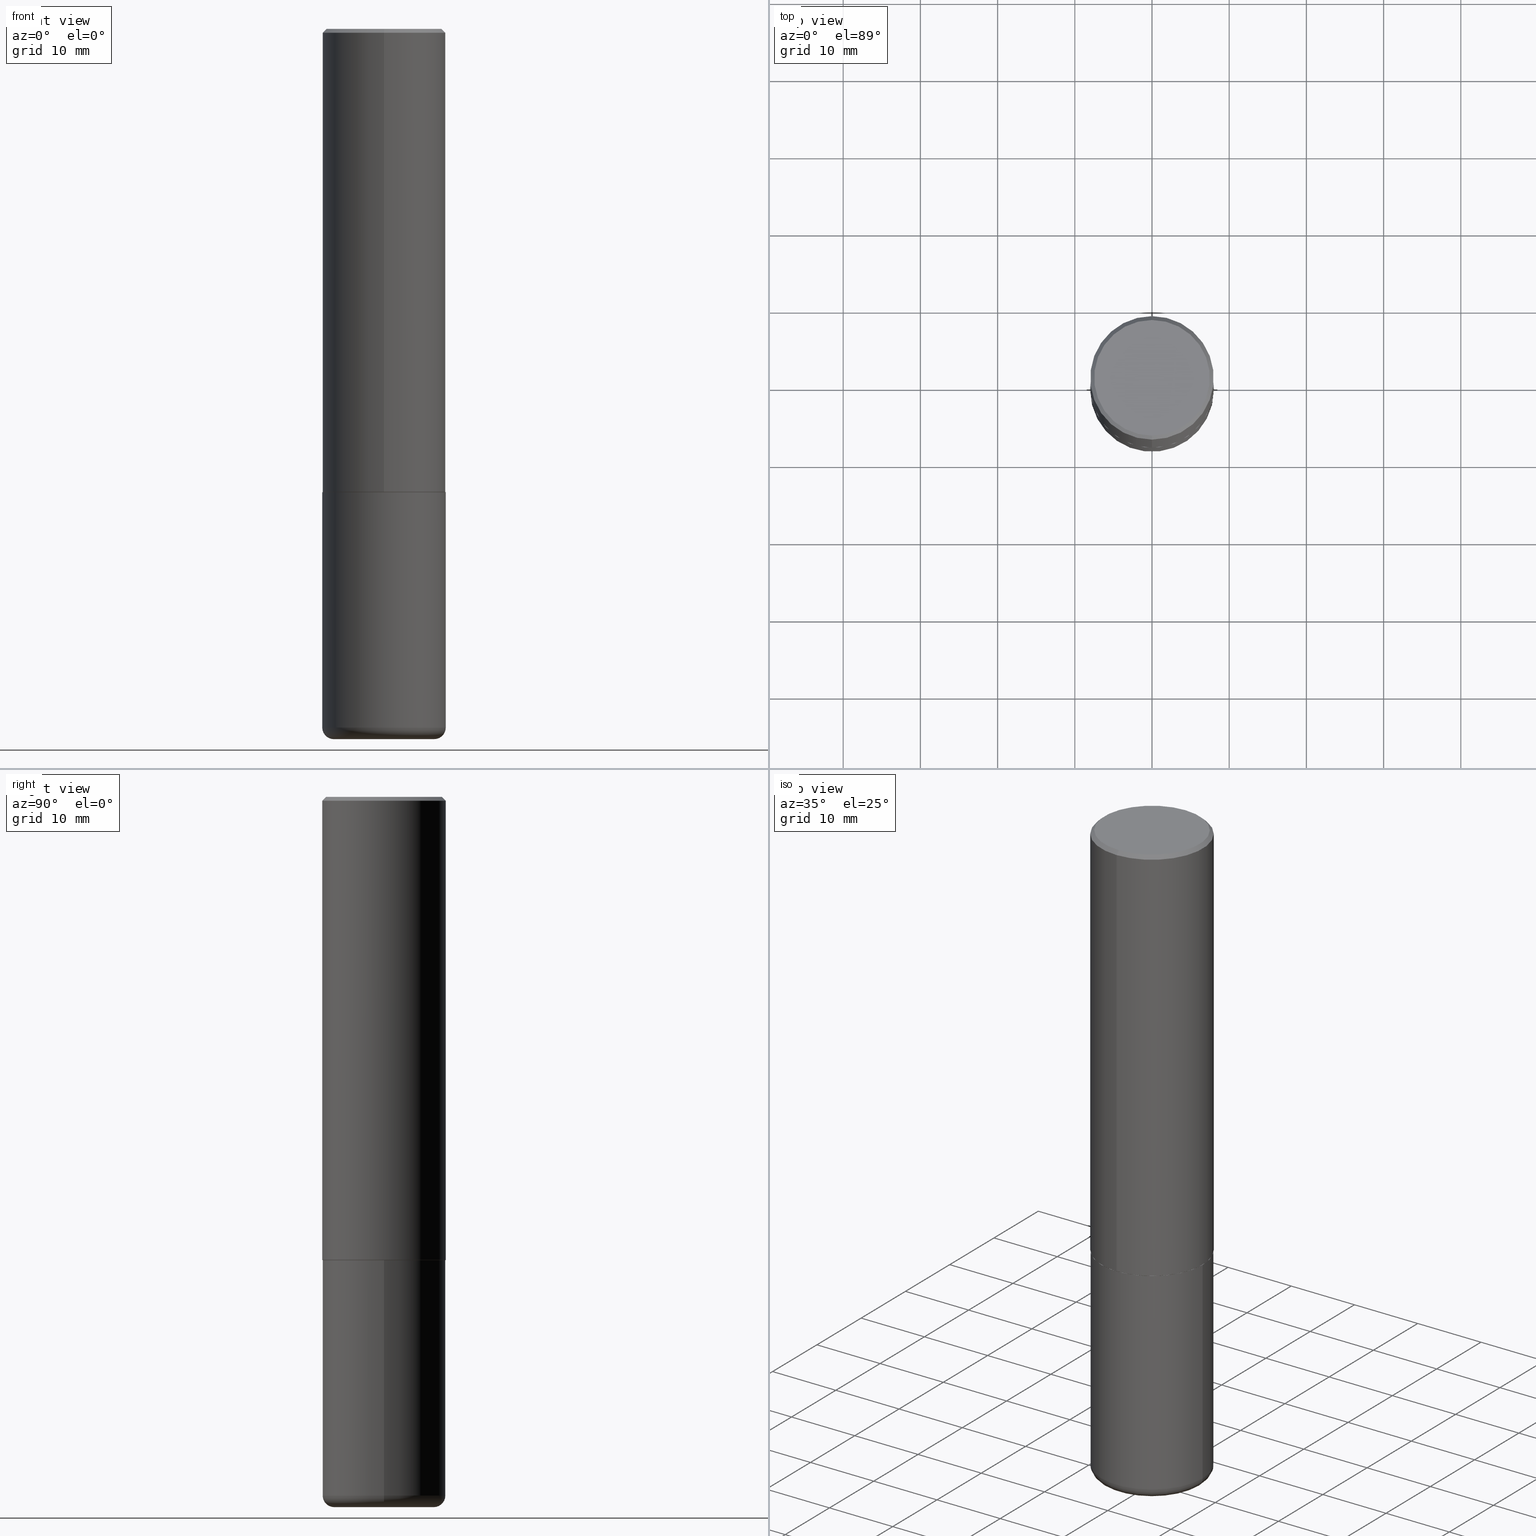
[diagram: canonical four-view strip — front | top / right | iso, engineering-drawing reading convention]
A machine part, canonical four-view strip (front | top / right | iso — engineering-drawing reading convention). The complete STEP part file that produces these views, byte-faithful:
ISO-10303-21;
HEADER;
FILE_DESCRIPTION (( 'STEP AP203' ),
    '1' );
FILE_NAME ('46476.STEP',
    '2024-03-04T23:18:42',
    ( '' ),
    ( '' ),
    'SwSTEP 2.0',
    'SolidWorks 2023',
    '' );
FILE_SCHEMA (( 'CONFIG_CONTROL_DESIGN' ));
ENDSEC;

DATA;
#1 = EDGE_LOOP ( 'NONE', ( #93, #29 ) ) ;
#2 = LOCAL_TIME ( 18, 18, 42.00000000000000000, #318 ) ;
#3 = VERTEX_POINT ( 'NONE', #195 ) ;
#4 = PERSON_AND_ORGANIZATION ( #107, #355 ) ;
#5 = APPLICATION_PROTOCOL_DEFINITION ( 'international standard', 'config_control_design', 1994, #44 ) ;
#6 = COORDINATED_UNIVERSAL_TIME_OFFSET ( 5, 0, .BEHIND. ) ;
#7 = TOROIDAL_SURFACE ( 'NONE', #342, 0.2558500000000000218, 0.05909999999999999282 ) ;
#8 = CARTESIAN_POINT ( 'NONE',  ( -0.3149500000000000077, 2.237854346276435590E-15, -1.549218606675782676E-29 ) ) ;
#9 = DATE_AND_TIME ( #356, #392 ) ;
#10 = DIRECTION ( 'NONE',  ( 2.445169622182783915E-29, -3.491909787363009980E-15, -1.000000000000000000 ) ) ;
#11 = FACE_OUTER_BOUND ( 'NONE', #384, .T. ) ;
#12 = ORIENTED_EDGE ( 'NONE', *, *, #179, .F. ) ;
#13 = DIRECTION ( 'NONE',  ( 2.445169622182784195E-29, -3.491909787363010375E-15, -1.000000000000000000 ) ) ;
#14 = CIRCLE ( 'NONE', #244, 0.3149500000000000077 ) ;
#15 = LINE ( 'NONE', #409, #204 ) ;
#16 = CYLINDRICAL_SURFACE ( 'NONE', #258, 0.3149500000000000077 ) ;
#17 = FACE_OUTER_BOUND ( 'NONE', #102, .T. ) ;
#18 = DIRECTION ( 'NONE',  ( 2.438088387897960049E-29, -3.491481338843145188E-15, -1.000000000000000000 ) ) ;
#19 = VERTEX_POINT ( 'NONE', #174 ) ;
#20 = CARTESIAN_POINT ( 'NONE',  ( 2.234301632597693067E-15, 0.3139499999999917357, -2.362200000000000966 ) ) ;
#21 = ORIENTED_EDGE ( 'NONE', *, *, #147, .F. ) ;
#22 = DIRECTION ( 'NONE',  ( 6.982962677686265922E-15, 1.000000000000000000, -3.491909787363009980E-15 ) ) ;
#23 = AXIS2_PLACEMENT_3D ( 'NONE', #405, #279, #241 ) ;
#24 = DIRECTION ( 'NONE',  ( -2.445468806185136597E-29, 3.491481338843145583E-15, 1.000000000000000000 ) ) ;
#25 = ORIENTED_EDGE ( 'NONE', *, *, #331, .T. ) ;
#26 = DIRECTION ( 'NONE',  ( -2.445468806185136877E-29, 3.491481338843145188E-15, 1.000000000000000000 ) ) ;
#27 = ORIENTED_EDGE ( 'NONE', *, *, #249, .F. ) ;
#28 = AXIS2_PLACEMENT_3D ( 'NONE', #328, #30, #133 ) ;
#29 = ORIENTED_EDGE ( 'NONE', *, *, #386, .F. ) ;
#30 = DIRECTION ( 'NONE',  ( -2.445169622182784195E-29, 3.491909787363010375E-15, 1.000000000000000000 ) ) ;
#31 = ORIENTED_EDGE ( 'NONE', *, *, #259, .T. ) ;
#32 = DIRECTION ( 'NONE',  ( 1.000000000000000000, -6.982962677686266711E-15, 0.000000000000000000 ) ) ;
#33 = EDGE_CURVE ( 'NONE', #45, #299, #69, .T. ) ;
#34 = CALENDAR_DATE ( 2024, 4, 3 ) ;
#35 = AXIS2_PLACEMENT_3D ( 'NONE', #87, #246, #363 ) ;
#36 = DIRECTION ( 'NONE',  ( 0.000000000000000000, 0.000000000000000000, 1.000000000000000000 ) ) ;
#37 = APPLICATION_CONTEXT ( 'configuration controlled 3d designs of mechanical parts and assemblies' ) ;
#38 = EDGE_CURVE ( 'NONE', #163, #3, #14, .T. ) ;
#39 = PERSON_AND_ORGANIZATION ( #107, #355 ) ;
#40 = CC_DESIGN_PERSON_AND_ORGANIZATION_ASSIGNMENT ( #100, #292, ( #50 ) ) ;
#41 = CIRCLE ( 'NONE', #104, 0.2949499999999997679 ) ;
#42 = CARTESIAN_POINT ( 'NONE',  ( 2.199284095337289871E-15, 0.3149499999999999522, -0.02000000000000116962 ) ) ;
#43 = LINE ( 'NONE', #8, #119 ) ;
#44 = APPLICATION_CONTEXT ( 'configuration controlled 3d designs of mechanical parts and assemblies' ) ;
#45 = VERTEX_POINT ( 'NONE', #332 ) ;
#46 = PLANE ( 'NONE',  #136 ) ;
#47 = DIRECTION ( 'NONE',  ( -2.445169622182784195E-29, 3.491909787363010375E-15, 1.000000000000000000 ) ) ;
#48 = VERTEX_POINT ( 'NONE', #359 ) ;
#49 = AXIS2_PLACEMENT_3D ( 'NONE', #364, #47, #338 ) ;
#50 = SECURITY_CLASSIFICATION ( '', '', #389 ) ;
#51 = EDGE_CURVE ( 'NONE', #256, #19, #293, .T. ) ;
#52 = DIRECTION ( 'NONE',  ( -2.445468806185136597E-29, 3.491481338843145583E-15, 1.000000000000000000 ) ) ;
#53 = CARTESIAN_POINT ( 'NONE',  ( -2.092108864420427242E-15, -0.2949499999999997679, 1.239222274688573328E-15 ) ) ;
#54 = CALENDAR_DATE ( 2024, 4, 3 ) ;
#55 = CC_DESIGN_SECURITY_CLASSIFICATION ( #50, ( #182 ) ) ;
#56 = CC_DESIGN_PERSON_AND_ORGANIZATION_ASSIGNMENT ( #387, #143, ( #413 ) ) ;
#57 = DIRECTION ( 'NONE',  ( 5.024295867787889629E-15, 0.7071067811865257013, 0.7071067811865691111 ) ) ;
#58 = ORIENTED_EDGE ( 'NONE', *, *, #280, .F. ) ;
#59 = DIRECTION ( 'NONE',  ( -2.445169622182784195E-29, 3.491909787363010375E-15, 1.000000000000000000 ) ) ;
#60 = VECTOR ( 'NONE', #26, 39.37007874015748143 ) ;
#61 = ORIENTED_EDGE ( 'NONE', *, *, #147, .T. ) ;
#62 = DIRECTION ( 'NONE',  ( -2.445468806185136597E-29, 3.491481338843145583E-15, 1.000000000000000000 ) ) ;
#63 = CARTESIAN_POINT ( 'NONE',  ( 4.890339244365585170E-31, -6.983819574726043281E-17, -0.02000000000000006981 ) ) ;
#64 = COORDINATED_UNIVERSAL_TIME_OFFSET ( 5, 0, .BEHIND. ) ;
#65 = CYLINDRICAL_SURFACE ( 'NONE', #197, 0.3149500000000001743 ) ;
#66 = ORIENTED_EDGE ( 'NONE', *, *, #259, .F. ) ;
#67 =( NAMED_UNIT ( * ) SI_UNIT ( $, .STERADIAN. ) SOLID_ANGLE_UNIT ( ) );
#68 = ADVANCED_FACE ( 'NONE', ( #233 ), #16, .T. ) ;
#69 = CIRCLE ( 'NONE', #301, 0.2558500000000000218 ) ;
#70 = CIRCLE ( 'NONE', #360, 0.3139500000000000068 ) ;
#71 = EDGE_CURVE ( 'NONE', #379, #3, #277, .T. ) ;
#72 = APPROVAL_ROLE ( '' ) ;
#73 = CARTESIAN_POINT ( 'NONE',  ( 4.890339244365585170E-31, -6.983819574726043281E-17, -0.02000000000000006981 ) ) ;
#74 = CALENDAR_DATE ( 2024, 4, 3 ) ;
#75 = DIRECTION ( 'NONE',  ( -2.445169622182784195E-29, 3.491909787363010375E-15, 1.000000000000000000 ) ) ;
#76 = AXIS2_PLACEMENT_3D ( 'NONE', #340, #18, #242 ) ;
#77 = ADVANCED_BREP_SHAPE_REPRESENTATION ( '46476', ( #373, #382, #283 ), #251 ) ;
#78 = EDGE_LOOP ( 'NONE', ( #417, #305, #113, #416 ) ) ;
#79 = AXIS2_PLACEMENT_3D ( 'NONE', #322, #59, #418 ) ;
#80 = FACE_OUTER_BOUND ( 'NONE', #78, .T. ) ;
#81 = CARTESIAN_POINT ( 'NONE',  ( 5.776686413970529753E-29, -8.247577218615278049E-15, -2.362199999999999633 ) ) ;
#82 = CARTESIAN_POINT ( 'NONE',  ( 8.857488016002564476E-29, -1.264614540928987199E-14, -3.621999999999999886 ) ) ;
#83 = FACE_OUTER_BOUND ( 'NONE', #381, .T. ) ;
#84 = APPROVAL ( #284, 'UNSPECIFIED' ) ;
#85 = APPROVAL_PERSON_ORGANIZATION ( #4, #84, #129 ) ;
#86 = DIRECTION ( 'NONE',  ( -2.445169622182784195E-29, 3.491909787363009980E-15, 1.000000000000000000 ) ) ;
#87 = CARTESIAN_POINT ( 'NONE',  ( 0.000000000000000000, 0.000000000000000000, 0.000000000000000000 ) ) ;
#88 = EDGE_CURVE ( 'NONE', #379, #154, #89, .T. ) ;
#89 = CIRCLE ( 'NONE', #406, 0.3149500000000002853 ) ;
#90 = CONICAL_SURFACE ( 'NONE', #385, 0.3149500000000000077, 0.7853981633974471688 ) ;
#91 = CARTESIAN_POINT ( 'NONE',  ( 2.237854346276465567E-15, 0.3149499999999920141, -2.361200000000000632 ) ) ;
#92 = EDGE_LOOP ( 'NONE', ( #240, #252, #157, #218 ) ) ;
#93 = ORIENTED_EDGE ( 'NONE', *, *, #186, .F. ) ;
#94 = CLOSED_SHELL ( 'NONE', ( #372, #390, #243, #229, #298, #312, #262, #247 ) ) ;
#95 = FACE_OUTER_BOUND ( 'NONE', #125, .T. ) ;
#96 = AXIS2_PLACEMENT_3D ( 'NONE', #276, #117, #368 ) ;
#97 = EDGE_LOOP ( 'NONE', ( #61, #345, #199, #168 ) ) ;
#98 = PRODUCT_DEFINITION_SHAPE ( 'NONE', 'NONE',  #413 ) ;
#99 = ADVANCED_FACE ( 'NONE', ( #83 ), #304, .T. ) ;
#100 = PERSON_AND_ORGANIZATION ( #107, #355 ) ;
#101 = PRODUCT_RELATED_PRODUCT_CATEGORY ( 'detail', '', ( #132 ) ) ;
#102 = EDGE_LOOP ( 'NONE', ( #370, #194, #254, #58 ) ) ;
#103 = PERSON_AND_ORGANIZATION_ROLE ( 'creator' ) ;
#104 = AXIS2_PLACEMENT_3D ( 'NONE', #184, #155, #309 ) ;
#105 = APPROVAL_ROLE ( '' ) ;
#106 = APPROVAL_DATE_TIME ( #137, #181 ) ;
#107 = PERSON ( 'UNSPECIFIED', 'UNSPECIFIED', 'UNSPECIFIED', ('UNSPECIFIED'), ('UNSPECIFIED'), ('UNSPECIFIED') ) ;
#108 = DIRECTION ( 'NONE',  ( 4.937700262164541731E-15, 0.7071067811865442421, -0.7071067811865507924 ) ) ;
#109 = LINE ( 'NONE', #42, #170 ) ;
#110 = EDGE_CURVE ( 'NONE', #213, #415, #226, .T. ) ;
#111 = CARTESIAN_POINT ( 'NONE',  ( 0.000000000000000000, 0.000000000000000000, 0.000000000000000000 ) ) ;
#112 = CIRCLE ( 'NONE', #141, 0.3149500000000000632 ) ;
#113 = ORIENTED_EDGE ( 'NONE', *, *, #38, .T. ) ;
#114 = LINE ( 'NONE', #257, #336 ) ;
#115 = CARTESIAN_POINT ( 'NONE',  ( -0.2558500000000000218, -1.051508316786773174E-14, -3.621999999999999886 ) ) ;
#116 = CARTESIAN_POINT ( 'NONE',  ( -0.3149500000000000077, -1.020194451588780718E-14, -3.562899999999999956 ) ) ;
#117 = DIRECTION ( 'NONE',  ( -2.445169622182784195E-29, 3.491909787363010375E-15, 1.000000000000000000 ) ) ;
#118 = CARTESIAN_POINT ( 'NONE',  ( 8.712960809557023143E-29, -1.243979886216424317E-14, -3.562899999999999956 ) ) ;
#119 = VECTOR ( 'NONE', #178, 39.37007874015748143 ) ;
#120 = DIRECTION ( 'NONE',  ( -2.445169622182784195E-29, 3.491909787363010375E-15, 1.000000000000000000 ) ) ;
#121 = CIRCLE ( 'NONE', #337, 0.3149500000000000077 ) ;
#122 = VERTEX_POINT ( 'NONE', #116 ) ;
#123 = DIRECTION ( 'NONE',  ( -2.445468806185136597E-29, 3.491481338843145583E-15, 1.000000000000000000 ) ) ;
#124 = EDGE_LOOP ( 'NONE', ( #221, #130, #349, #353 ) ) ;
#125 = EDGE_LOOP ( 'NONE', ( #408, #66, #329, #326 ) ) ;
#126 = CARTESIAN_POINT ( 'NONE',  ( 5.776686413970529753E-29, -8.247577218615278049E-15, -2.362199999999999633 ) ) ;
#127 = VECTOR ( 'NONE', #57, 39.37007874015748854 ) ;
#128 = DIRECTION ( 'NONE',  ( -2.445468806185136597E-29, 3.491481338843145583E-15, 1.000000000000000000 ) ) ;
#129 = APPROVAL_ROLE ( '' ) ;
#130 = ORIENTED_EDGE ( 'NONE', *, *, #71, .T. ) ;
#131 = DIRECTION ( 'NONE',  ( -6.982962677686266711E-15, -1.000000000000000000, 3.480615376543096919E-15 ) ) ;
#132 = PRODUCT ( '46476', '46476', '', ( #266 ) ) ;
#133 = DIRECTION ( 'NONE',  ( -6.982962677686266711E-15, -1.000000000000000000, 3.480615376543096919E-15 ) ) ;
#134 = VECTOR ( 'NONE', #86, 39.37007874015748143 ) ;
#135 = CLOSED_SHELL ( 'NONE', ( #68, #165, #291, #300, #198, #99 ) ) ;
#136 = AXIS2_PLACEMENT_3D ( 'NONE', #208, #404, #402 ) ;
#137 = DATE_AND_TIME ( #34, #414 ) ;
#138 = CC_DESIGN_PERSON_AND_ORGANIZATION_ASSIGNMENT ( #39, #388, ( #132 ) ) ;
#139 = PERSON_AND_ORGANIZATION ( #107, #355 ) ;
#140 = CALENDAR_DATE ( 2024, 4, 3 ) ;
#141 = AXIS2_PLACEMENT_3D ( 'NONE', #118, #153, #334 ) ;
#142 = LOCAL_TIME ( 18, 18, 42.00000000000000000, #261 ) ;
#143 = PERSON_AND_ORGANIZATION_ROLE ( 'creator' ) ;
#144 = CARTESIAN_POINT ( 'NONE',  ( 0.3149500000000000077, -1.463908295750153462E-14, -3.562899999999999956 ) ) ;
#145 = CARTESIAN_POINT ( 'NONE',  ( -2.160713844398143363E-15, -0.3149500000000000632, -0.01999999999999896652 ) ) ;
#146 = CARTESIAN_POINT ( 'NONE',  ( 2.059624841783562486E-15, 0.2949499999999997679, -9.252970503297919853E-16 ) ) ;
#147 = EDGE_CURVE ( 'NONE', #192, #122, #112, .T. ) ;
#148 = DIRECTION ( 'NONE',  ( 1.000000000000000000, -6.982962677686266711E-15, 4.876176775795936353E-29 ) ) ;
#149 = EDGE_CURVE ( 'NONE', #122, #213, #43, .T. ) ;
#150 = CARTESIAN_POINT ( 'NONE',  ( 5.773534511897989086E-29, -8.245097389921538599E-15, -2.361199999999999743 ) ) ;
#151 = EDGE_LOOP ( 'NONE', ( #180, #207 ) ) ;
#152 = CYLINDRICAL_SURFACE ( 'NONE', #159, 0.3149500000000000077 ) ;
#153 = DIRECTION ( 'NONE',  ( -2.445468806185136597E-29, 3.491481338843145583E-15, 1.000000000000000000 ) ) ;
#154 = VERTEX_POINT ( 'NONE', #297 ) ;
#155 = DIRECTION ( 'NONE',  ( -2.445169622182784195E-29, 3.491909787363010375E-15, 1.000000000000000000 ) ) ;
#156 = DIRECTION ( 'NONE',  ( -2.445169622182784195E-29, 3.491909787363010375E-15, 1.000000000000000000 ) ) ;
#157 = ORIENTED_EDGE ( 'NONE', *, *, #411, .T. ) ;
#158 = CARTESIAN_POINT ( 'NONE',  ( 5.776686413970529753E-29, -8.247577218615278049E-15, -2.362199999999999633 ) ) ;
#159 = AXIS2_PLACEMENT_3D ( 'NONE', #161, #24, #148 ) ;
#160 = CARTESIAN_POINT ( 'NONE',  ( 8.712960809557023143E-29, -1.243979886216424317E-14, -3.562899999999999956 ) ) ;
#161 = CARTESIAN_POINT ( 'NONE',  ( 0.000000000000000000, 0.000000000000000000, 0.000000000000000000 ) ) ;
#162 = SHAPE_DEFINITION_REPRESENTATION ( #98, #77 ) ;
#163 = VERTEX_POINT ( 'NONE', #145 ) ;
#164 =( LENGTH_UNIT ( ) NAMED_UNIT ( * ) SI_UNIT ( $, .METRE. ) );
#165 = ADVANCED_FACE ( 'NONE', ( #11 ), #348, .T. ) ;
#166 = DIRECTION ( 'NONE',  ( 7.105427357601001859E-15, 1.000000000000000000, -3.491481338843145583E-15 ) ) ;
#167 = DIRECTION ( 'NONE',  ( -4.937700262164378437E-15, -0.7071067811865208164, 0.7071067811865739960 ) ) ;
#168 = ORIENTED_EDGE ( 'NONE', *, *, #411, .F. ) ;
#169 = EDGE_CURVE ( 'NONE', #154, #379, #215, .T. ) ;
#170 = VECTOR ( 'NONE', #108, 39.37007874015748143 ) ;
#171 = PERSON_AND_ORGANIZATION_ROLE ( 'design_supplier' ) ;
#172 = DIRECTION ( 'NONE',  ( 1.000000000000000000, -6.982962677686269866E-15, 4.883557194083113462E-29 ) ) ;
#173 = EDGE_CURVE ( 'NONE', #122, #192, #222, .T. ) ;
#174 = CARTESIAN_POINT ( 'NONE',  ( 2.129454468560426178E-15, 0.2949499999999997679, -8.206553088768647725E-16 ) ) ;
#175 = PERSON_AND_ORGANIZATION ( #107, #355 ) ;
#176 = DIRECTION ( 'NONE',  ( -6.982962677686265922E-15, -1.000000000000000000, 3.469564049740290009E-15 ) ) ;
#177 = DIRECTION ( 'NONE',  ( 2.445169622182784195E-29, -3.491909787363010375E-15, -1.000000000000000000 ) ) ;
#178 = DIRECTION ( 'NONE',  ( -2.445468806185136877E-29, 3.491481338843145188E-15, 1.000000000000000000 ) ) ;
#179 = EDGE_CURVE ( 'NONE', #48, #154, #114, .T. ) ;
#180 = ORIENTED_EDGE ( 'NONE', *, *, #321, .T. ) ;
#181 = APPROVAL ( #395, 'UNSPECIFIED' ) ;
#182 = PRODUCT_DEFINITION_FORMATION_WITH_SPECIFIED_SOURCE ( 'ANY', '', #132, .NOT_KNOWN. ) ;
#183 = ORIENTED_EDGE ( 'NONE', *, *, #179, .T. ) ;
#184 = CARTESIAN_POINT ( 'NONE',  ( -5.117336148260046858E-45, 7.307990422923716453E-31, 2.092834829058542282E-16 ) ) ;
#185 = FACE_OUTER_BOUND ( 'NONE', #151, .T. ) ;
#186 = EDGE_CURVE ( 'NONE', #48, #248, #391, .T. ) ;
#187 = AXIS2_PLACEMENT_3D ( 'NONE', #158, #245, #239 ) ;
#188 = CIRCLE ( 'NONE', #273, 0.05909999999999999282 ) ;
#189 = DIRECTION ( 'NONE',  ( 1.000000000000000000, -6.982962677686269866E-15, 4.883557194083113462E-29 ) ) ;
#190 = ORIENTED_EDGE ( 'NONE', *, *, #308, .F. ) ;
#191 = EDGE_CURVE ( 'NONE', #19, #3, #109, .T. ) ;
#192 = VERTEX_POINT ( 'NONE', #144 ) ;
#193 = CARTESIAN_POINT ( 'NONE',  ( 0.000000000000000000, 0.000000000000000000, 0.000000000000000000 ) ) ;
#194 = ORIENTED_EDGE ( 'NONE', *, *, #88, .T. ) ;
#195 = CARTESIAN_POINT ( 'NONE',  ( 2.199284095337289871E-15, 0.3149499999999999522, -0.02000000000000116962 ) ) ;
#196 = PERSON_AND_ORGANIZATION ( #107, #355 ) ;
#197 = AXIS2_PLACEMENT_3D ( 'NONE', #193, #346, #316 ) ;
#198 = ADVANCED_FACE ( 'NONE', ( #200 ), #7, .T. ) ;
#199 = ORIENTED_EDGE ( 'NONE', *, *, #321, .F. ) ;
#200 = FACE_OUTER_BOUND ( 'NONE', #311, .T. ) ;
#201 = CC_DESIGN_PERSON_AND_ORGANIZATION_ASSIGNMENT ( #196, #103, ( #182 ) ) ;
#202 = APPLICATION_PROTOCOL_DEFINITION ( 'international standard', 'config_control_design', 1994, #37 ) ;
#203 = PLANE ( 'NONE',  #223 ) ;
#204 = VECTOR ( 'NONE', #210, 39.37007874015748143 ) ;
#205 = DIRECTION ( 'NONE',  ( -6.982962677686265922E-15, -1.000000000000000000, 3.496670018878889100E-15 ) ) ;
#206 = ORIENTED_EDGE ( 'NONE', *, *, #88, .F. ) ;
#207 = ORIENTED_EDGE ( 'NONE', *, *, #110, .T. ) ;
#208 = CARTESIAN_POINT ( 'NONE',  ( 5.775979681520172513E-29, -8.248589299708901965E-15, -2.362199999999999633 ) ) ;
#209 = DIRECTION ( 'NONE',  ( 1.000000000000000000, -6.982962677686266711E-15, 0.000000000000000000 ) ) ;
#210 = DIRECTION ( 'NONE',  ( -4.851104656540957964E-15, -0.7071067811865491270, -0.7071067811865459074 ) ) ;
#211 = LOCAL_TIME ( 18, 18, 42.00000000000000000, #6 ) ;
#212 = EDGE_LOOP ( 'NONE', ( #307, #314, #183, #206 ) ) ;
#213 = VERTEX_POINT ( 'NONE', #232 ) ;
#214 = FACE_OUTER_BOUND ( 'NONE', #92, .T. ) ;
#215 = CIRCLE ( 'NONE', #377, 0.3149500000000002853 ) ;
#216 = ORIENTED_EDGE ( 'NONE', *, *, #308, .T. ) ;
#217 = CIRCLE ( 'NONE', #294, 0.3149500000000000077 ) ;
#218 = ORIENTED_EDGE ( 'NONE', *, *, #110, .F. ) ;
#219 = CARTESIAN_POINT ( 'NONE',  ( 5.775979681520172513E-29, -8.248589299708903542E-15, -2.362200000000000077 ) ) ;
#220 = APPROVAL_DATE_TIME ( #313, #84 ) ;
#221 = ORIENTED_EDGE ( 'NONE', *, *, #169, .T. ) ;
#222 = CIRCLE ( 'NONE', #282, 0.3149500000000000632 ) ;
#223 = AXIS2_PLACEMENT_3D ( 'NONE', #146, #10, #22 ) ;
#224 = CARTESIAN_POINT ( 'NONE',  ( -0.2558500000000000218, -1.062187527272202748E-14, -3.562899999999999956 ) ) ;
#225 = COORDINATED_UNIVERSAL_TIME_OFFSET ( 5, 0, .BEHIND. ) ;
#226 = CIRCLE ( 'NONE', #400, 0.3149500000000000077 ) ;
#227 = CC_DESIGN_APPROVAL ( #181, ( #182 ) ) ;
#228 = DATE_AND_TIME ( #74, #142 ) ;
#229 = ADVANCED_FACE ( 'NONE', ( #95 ), #90, .T. ) ;
#230 = DIRECTION ( 'NONE',  ( 6.982962677686265922E-15, 1.000000000000000000, -3.496670018878889100E-15 ) ) ;
#231 =( NAMED_UNIT ( * ) PLANE_ANGLE_UNIT ( ) SI_UNIT ( $, .RADIAN. ) );
#232 = CARTESIAN_POINT ( 'NONE',  ( -0.3149500000000000077, -8.105833694113324624E-15, -2.362199999999999633 ) ) ;
#233 = FACE_OUTER_BOUND ( 'NONE', #97, .T. ) ;
#234 = DATE_TIME_ROLE ( 'classification_date' ) ;
#235 = CC_DESIGN_DATE_AND_TIME_ASSIGNMENT ( #228, #288, ( #413 ) ) ;
#236 = CC_DESIGN_APPROVAL ( #84, ( #50 ) ) ;
#237 = DIRECTION ( 'NONE',  ( 1.000000000000000000, -6.982962677686266711E-15, 4.876176775795936353E-29 ) ) ;
#238 = ORIENTED_EDGE ( 'NONE', *, *, #33, .F. ) ;
#239 = DIRECTION ( 'NONE',  ( -1.000000000000000000, 6.982962677686265922E-15, -4.876176775795935793E-29 ) ) ;
#240 = ORIENTED_EDGE ( 'NONE', *, *, #149, .F. ) ;
#241 = DIRECTION ( 'NONE',  ( 1.000000000000000000, -6.982962677686262766E-15, 0.000000000000000000 ) ) ;
#242 = DIRECTION ( 'NONE',  ( -1.000000000000000000, 6.982962677686265922E-15, -4.876176775795935793E-29 ) ) ;
#243 = ADVANCED_FACE ( 'NONE', ( #80 ), #401, .T. ) ;
#244 = AXIS2_PLACEMENT_3D ( 'NONE', #263, #354, #205 ) ;
#245 = DIRECTION ( 'NONE',  ( 2.438088387897960049E-29, -3.491481338843145188E-15, -1.000000000000000000 ) ) ;
#246 = DIRECTION ( 'NONE',  ( -2.445169622182784195E-29, 3.491909787363010375E-15, 1.000000000000000000 ) ) ;
#247 = ADVANCED_FACE ( 'NONE', ( #358 ), #203, .F. ) ;
#248 = VERTEX_POINT ( 'NONE', #20 ) ;
#249 = EDGE_CURVE ( 'NONE', #45, #192, #407, .T. ) ;
#250 = ORIENTED_EDGE ( 'NONE', *, *, #173, .F. ) ;
#251 =( GEOMETRIC_REPRESENTATION_CONTEXT ( 3 ) GLOBAL_UNCERTAINTY_ASSIGNED_CONTEXT ( ( #275 ) ) GLOBAL_UNIT_ASSIGNED_CONTEXT ( ( #357, #231, #67 ) ) REPRESENTATION_CONTEXT ( 'NONE', 'WORKASPACE' ) );
#252 = ORIENTED_EDGE ( 'NONE', *, *, #173, .T. ) ;
#253 = LINE ( 'NONE', #380, #290 ) ;
#254 = ORIENTED_EDGE ( 'NONE', *, *, #347, .T. ) ;
#255 = DIRECTION ( 'NONE',  ( -2.445169622182784195E-29, 3.491909787363009980E-15, 1.000000000000000000 ) ) ;
#256 = VERTEX_POINT ( 'NONE', #53 ) ;
#257 = CARTESIAN_POINT ( 'NONE',  ( -2.192301132659545875E-15, -0.3139500000000082780, -2.362199999999998745 ) ) ;
#258 = AXIS2_PLACEMENT_3D ( 'NONE', #111, #366, #237 ) ;
#259 = EDGE_CURVE ( 'NONE', #19, #256, #41, .T. ) ;
#260 = CONICAL_SURFACE ( 'NONE', #79, 0.3139500000000000068, 0.7853981633974141952 ) ;
#261 = COORDINATED_UNIVERSAL_TIME_OFFSET ( 5, 0, .BEHIND. ) ;
#262 = ADVANCED_FACE ( 'NONE', ( #410 ), #46, .F. ) ;
#263 = CARTESIAN_POINT ( 'NONE',  ( 4.890339244365585170E-31, -6.983819574726043281E-17, -0.02000000000000006981 ) ) ;
#264 = APPROVAL_DATE_TIME ( #9, #335 ) ;
#265 = CARTESIAN_POINT ( 'NONE',  ( 8.857488016002564476E-29, -1.264614540928987199E-14, -3.621999999999999886 ) ) ;
#266 = MECHANICAL_CONTEXT ( 'NONE', #44, 'mechanical' ) ;
#267 = AXIS2_PLACEMENT_3D ( 'NONE', #82, #123, #274 ) ;
#268 = CARTESIAN_POINT ( 'NONE',  ( 0.000000000000000000, 0.000000000000000000, 0.000000000000000000 ) ) ;
#269 = LENGTH_MEASURE_WITH_UNIT ( LENGTH_MEASURE( 0.02539999999999999897 ), #164 );
#270 = DIRECTION ( 'NONE',  ( -6.982962677686265922E-15, -1.000000000000000000, 3.469564049740290009E-15 ) ) ;
#271 = CARTESIAN_POINT ( 'NONE',  ( 5.773534511897989086E-29, -8.245097389921538599E-15, -2.361199999999999743 ) ) ;
#272 = ORIENTED_EDGE ( 'NONE', *, *, #186, .T. ) ;
#273 = AXIS2_PLACEMENT_3D ( 'NONE', #224, #166, #376 ) ;
#274 = DIRECTION ( 'NONE',  ( 1.000000000000000000, -6.982962677686263555E-15, 0.000000000000000000 ) ) ;
#275 = UNCERTAINTY_MEASURE_WITH_UNIT (LENGTH_MEASURE( 1.000000000000000082E-05 ), #357, 'distance_accuracy_value', 'NONE');
#276 = CARTESIAN_POINT ( 'NONE',  ( 5.775979681520172513E-29, -8.248589299708903542E-15, -2.362200000000000077 ) ) ;
#277 = LINE ( 'NONE', #362, #134 ) ;
#278 = EDGE_CURVE ( 'NONE', #256, #163, #15, .T. ) ;
#279 = DIRECTION ( 'NONE',  ( -6.982962677686266711E-15, -1.000000000000000000, 3.491481338843145583E-15 ) ) ;
#280 = EDGE_CURVE ( 'NONE', #3, #163, #217, .T. ) ;
#281 = CARTESIAN_POINT ( 'NONE',  ( 2.230748918918891775E-15, 0.3139499999999917357, -2.362200000000000966 ) ) ;
#282 = AXIS2_PLACEMENT_3D ( 'NONE', #351, #317, #399 ) ;
#283 = AXIS2_PLACEMENT_3D ( 'NONE', #268, #36, #398 ) ;
#284 = APPROVAL_STATUS ( 'not_yet_approved' ) ;
#285 = ORIENTED_EDGE ( 'NONE', *, *, #33, .T. ) ;
#286 = CARTESIAN_POINT ( 'NONE',  ( 0.3149500000000000077, -2.199284095337289871E-15, 1.535751875536930130E-29 ) ) ;
#287 = ORIENTED_EDGE ( 'NONE', *, *, #249, .T. ) ;
#288 = DATE_TIME_ROLE ( 'creation_date' ) ;
#289 = LINE ( 'NONE', #281, #127 ) ;
#290 = VECTOR ( 'NONE', #255, 39.37007874015748143 ) ;
#291 = ADVANCED_FACE ( 'NONE', ( #185 ), #303, .F. ) ;
#292 = PERSON_AND_ORGANIZATION_ROLE ( 'classification_officer' ) ;
#293 = CIRCLE ( 'NONE', #49, 0.2949499999999997679 ) ;
#294 = AXIS2_PLACEMENT_3D ( 'NONE', #333, #120, #339 ) ;
#295 = DESIGN_CONTEXT ( 'detailed design', #37, 'design' ) ;
#296 = APPROVAL_STATUS ( 'not_yet_approved' ) ;
#297 = CARTESIAN_POINT ( 'NONE',  ( -2.199284095337233467E-15, -0.3149500000000085564, -2.361199999999998411 ) ) ;
#298 = ADVANCED_FACE ( 'NONE', ( #17 ), #371, .T. ) ;
#299 = VERTEX_POINT ( 'NONE', #115 ) ;
#300 = ADVANCED_FACE ( 'NONE', ( #214 ), #152, .T. ) ;
#301 = AXIS2_PLACEMENT_3D ( 'NONE', #265, #394, #323 ) ;
#302 = EDGE_LOOP ( 'NONE', ( #31, #403 ) ) ;
#303 = PLANE ( 'NONE',  #187 ) ;
#304 = PLANE ( 'NONE',  #76 ) ;
#305 = ORIENTED_EDGE ( 'NONE', *, *, #278, .T. ) ;
#306 = APPROVAL_PERSON_ORGANIZATION ( #139, #335, #105 ) ;
#307 = ORIENTED_EDGE ( 'NONE', *, *, #324, .F. ) ;
#308 = EDGE_CURVE ( 'NONE', #299, #45, #378, .T. ) ;
#309 = DIRECTION ( 'NONE',  ( -6.982962677686265922E-15, -1.000000000000000000, 3.491909787363010375E-15 ) ) ;
#310 = FACE_OUTER_BOUND ( 'NONE', #367, .T. ) ;
#311 = EDGE_LOOP ( 'NONE', ( #315, #216, #287, #250 ) ) ;
#312 = ADVANCED_FACE ( 'NONE', ( #365 ), #325, .T. ) ;
#313 = DATE_AND_TIME ( #54, #2 ) ;
#314 = ORIENTED_EDGE ( 'NONE', *, *, #386, .T. ) ;
#315 = ORIENTED_EDGE ( 'NONE', *, *, #331, .F. ) ;
#316 = DIRECTION ( 'NONE',  ( -6.982962677686264344E-15, -1.000000000000000000, 3.491909787363010375E-15 ) ) ;
#317 = DIRECTION ( 'NONE',  ( -2.445468806185136597E-29, 3.491481338843145583E-15, 1.000000000000000000 ) ) ;
#318 = COORDINATED_UNIVERSAL_TIME_OFFSET ( 5, 0, .BEHIND. ) ;
#319 = CARTESIAN_POINT ( 'NONE',  ( 0.3149500000000000077, -1.044686131395256792E-14, -2.362199999999999633 ) ) ;
#320 = PERSON_AND_ORGANIZATION ( #107, #355 ) ;
#321 = EDGE_CURVE ( 'NONE', #415, #213, #121, .T. ) ;
#322 = CARTESIAN_POINT ( 'NONE',  ( 5.775979681520172513E-29, -8.248589299708903542E-15, -2.362200000000000077 ) ) ;
#323 = DIRECTION ( 'NONE',  ( 1.000000000000000000, -6.982962677686263555E-15, 0.000000000000000000 ) ) ;
#324 = EDGE_CURVE ( 'NONE', #248, #379, #289, .T. ) ;
#325 = CONICAL_SURFACE ( 'NONE', #96, 0.3139500000000000068, 0.7853981633974141952 ) ;
#326 = ORIENTED_EDGE ( 'NONE', *, *, #280, .T. ) ;
#327 = LINE ( 'NONE', #286, #60 ) ;
#328 = CARTESIAN_POINT ( 'NONE',  ( 5.775979681520172513E-29, -8.248589299708903542E-15, -2.362200000000000077 ) ) ;
#329 = ORIENTED_EDGE ( 'NONE', *, *, #191, .T. ) ;
#330 = DATE_AND_TIME ( #140, #211 ) ;
#331 = EDGE_CURVE ( 'NONE', #299, #122, #188, .T. ) ;
#332 = CARTESIAN_POINT ( 'NONE',  ( 0.2558500000000000218, -1.443273641037590422E-14, -3.621999999999999886 ) ) ;
#333 = CARTESIAN_POINT ( 'NONE',  ( 4.890339244365585170E-31, -6.983819574726043281E-17, -0.02000000000000006981 ) ) ;
#334 = DIRECTION ( 'NONE',  ( 1.000000000000000000, -6.982962677686268288E-15, 0.000000000000000000 ) ) ;
#335 = APPROVAL ( #296, 'UNSPECIFIED' ) ;
#336 = VECTOR ( 'NONE', #167, 39.37007874015748854 ) ;
#337 = AXIS2_PLACEMENT_3D ( 'NONE', #126, #62, #32 ) ;
#338 = DIRECTION ( 'NONE',  ( -6.982962677686265922E-15, -1.000000000000000000, 3.491909787363010375E-15 ) ) ;
#339 = DIRECTION ( 'NONE',  ( -6.982962677686265922E-15, -1.000000000000000000, 3.496670018878889100E-15 ) ) ;
#340 = CARTESIAN_POINT ( 'NONE',  ( 8.857488016002564476E-29, -1.264614540928987199E-14, -3.621999999999999886 ) ) ;
#341 = AXIS2_PLACEMENT_3D ( 'NONE', #160, #128, #189 ) ;
#342 = AXIS2_PLACEMENT_3D ( 'NONE', #383, #393, #172 ) ;
#343 = ORIENTED_EDGE ( 'NONE', *, *, #169, .F. ) ;
#344 = FACE_OUTER_BOUND ( 'NONE', #124, .T. ) ;
#345 = ORIENTED_EDGE ( 'NONE', *, *, #149, .T. ) ;
#346 = DIRECTION ( 'NONE',  ( -2.445169622182784195E-29, 3.491909787363010375E-15, 1.000000000000000000 ) ) ;
#347 = EDGE_CURVE ( 'NONE', #154, #163, #253, .T. ) ;
#348 = TOROIDAL_SURFACE ( 'NONE', #341, 0.2558500000000000218, 0.05909999999999999282 ) ;
#349 = ORIENTED_EDGE ( 'NONE', *, *, #38, .F. ) ;
#350 = AXIS2_PLACEMENT_3D ( 'NONE', #73, #177, #397 ) ;
#351 = CARTESIAN_POINT ( 'NONE',  ( 8.712960809557023143E-29, -1.243979886216424317E-14, -3.562899999999999956 ) ) ;
#352 = DIRECTION ( 'NONE',  ( -2.445169622182784195E-29, 3.491909787363010375E-15, 1.000000000000000000 ) ) ;
#353 = ORIENTED_EDGE ( 'NONE', *, *, #347, .F. ) ;
#354 = DIRECTION ( 'NONE',  ( -2.445169622182784195E-29, 3.491909787363010375E-15, 1.000000000000000000 ) ) ;
#355 = ORGANIZATION ( 'UNSPECIFIED', 'UNSPECIFIED', '' ) ;
#356 = CALENDAR_DATE ( 2024, 4, 3 ) ;
#357 =( CONVERSION_BASED_UNIT ( 'INCH', #269 ) LENGTH_UNIT ( ) NAMED_UNIT ( #374 ) );
#358 = FACE_OUTER_BOUND ( 'NONE', #302, .T. ) ;
#359 = CARTESIAN_POINT ( 'NONE',  ( -2.192301132659545875E-15, -0.3139500000000082780, -2.362199999999998745 ) ) ;
#360 = AXIS2_PLACEMENT_3D ( 'NONE', #219, #352, #131 ) ;
#361 = CC_DESIGN_APPROVAL ( #335, ( #413 ) ) ;
#362 = CARTESIAN_POINT ( 'NONE',  ( 2.237854346276435985E-15, 0.3149500000000001743, -1.099776987529980703E-15 ) ) ;
#363 = DIRECTION ( 'NONE',  ( -6.982962677686264344E-15, -1.000000000000000000, 3.491909787363010375E-15 ) ) ;
#364 = CARTESIAN_POINT ( 'NONE',  ( -5.117336148260046858E-45, 7.307990422923716453E-31, 2.092834829058542282E-16 ) ) ;
#365 = FACE_OUTER_BOUND ( 'NONE', #212, .T. ) ;
#366 = DIRECTION ( 'NONE',  ( -2.445468806185136597E-29, 3.491481338843145583E-15, 1.000000000000000000 ) ) ;
#367 = EDGE_LOOP ( 'NONE', ( #272, #412, #343, #12 ) ) ;
#368 = DIRECTION ( 'NONE',  ( -6.982962677686266711E-15, -1.000000000000000000, 3.480615376543096919E-15 ) ) ;
#369 = APPROVAL_PERSON_ORGANIZATION ( #320, #181, #72 ) ;
#370 = ORIENTED_EDGE ( 'NONE', *, *, #71, .F. ) ;
#371 = CYLINDRICAL_SURFACE ( 'NONE', #35, 0.3149500000000001743 ) ;
#372 = ADVANCED_FACE ( 'NONE', ( #310 ), #260, .T. ) ;
#373 = MANIFOLD_SOLID_BREP ( 'Body-Move/Copy2[1]', #135 ) ;
#374 = DIMENSIONAL_EXPONENTS ( 1.000000000000000000, 0.000000000000000000, 0.000000000000000000, 0.000000000000000000, 0.000000000000000000, 0.000000000000000000, 0.000000000000000000 ) ;
#375 = CC_DESIGN_DATE_AND_TIME_ASSIGNMENT ( #330, #234, ( #50 ) ) ;
#376 = DIRECTION ( 'NONE',  ( -1.000000000000000000, 7.105427357600993181E-15, 0.000000000000000000 ) ) ;
#377 = AXIS2_PLACEMENT_3D ( 'NONE', #271, #156, #270 ) ;
#378 = CIRCLE ( 'NONE', #267, 0.2558500000000000218 ) ;
#379 = VERTEX_POINT ( 'NONE', #91 ) ;
#380 = CARTESIAN_POINT ( 'NONE',  ( -2.199284095337290265E-15, -0.3149500000000001743, 1.099776987529980703E-15 ) ) ;
#381 = EDGE_LOOP ( 'NONE', ( #238, #190 ) ) ;
#382 = MANIFOLD_SOLID_BREP ( 'Body-Move/Copy2[2]', #94 ) ;
#383 = CARTESIAN_POINT ( 'NONE',  ( 8.712960809557023143E-29, -1.243979886216424317E-14, -3.562899999999999956 ) ) ;
#384 = EDGE_LOOP ( 'NONE', ( #285, #25, #21, #27 ) ) ;
#385 = AXIS2_PLACEMENT_3D ( 'NONE', #63, #13, #230 ) ;
#386 = EDGE_CURVE ( 'NONE', #248, #48, #70, .T. ) ;
#387 = PERSON_AND_ORGANIZATION ( #107, #355 ) ;
#388 = PERSON_AND_ORGANIZATION_ROLE ( 'design_owner' ) ;
#389 = SECURITY_CLASSIFICATION_LEVEL ( 'unclassified' ) ;
#390 = ADVANCED_FACE ( 'NONE', ( #344 ), #65, .T. ) ;
#391 = CIRCLE ( 'NONE', #28, 0.3139500000000000068 ) ;
#392 = LOCAL_TIME ( 18, 18, 42.00000000000000000, #225 ) ;
#393 = DIRECTION ( 'NONE',  ( -2.445468806185136597E-29, 3.491481338843145583E-15, 1.000000000000000000 ) ) ;
#394 = DIRECTION ( 'NONE',  ( -2.445468806185136597E-29, 3.491481338843145583E-15, 1.000000000000000000 ) ) ;
#395 = APPROVAL_STATUS ( 'not_yet_approved' ) ;
#396 = CC_DESIGN_PERSON_AND_ORGANIZATION_ASSIGNMENT ( #175, #171, ( #182 ) ) ;
#397 = DIRECTION ( 'NONE',  ( 6.982962677686265922E-15, 1.000000000000000000, -3.496670018878889100E-15 ) ) ;
#398 = DIRECTION ( 'NONE',  ( 1.000000000000000000, 0.000000000000000000, 0.000000000000000000 ) ) ;
#399 = DIRECTION ( 'NONE',  ( 1.000000000000000000, -6.982962677686268288E-15, 0.000000000000000000 ) ) ;
#400 = AXIS2_PLACEMENT_3D ( 'NONE', #81, #52, #209 ) ;
#401 = CONICAL_SURFACE ( 'NONE', #350, 0.3149500000000000077, 0.7853981633974471688 ) ;
#402 = DIRECTION ( 'NONE',  ( -6.982962677686265922E-15, -1.000000000000000000, 3.491909787363009980E-15 ) ) ;
#403 = ORIENTED_EDGE ( 'NONE', *, *, #51, .T. ) ;
#404 = DIRECTION ( 'NONE',  ( -2.445169622182783915E-29, 3.491909787363009980E-15, 1.000000000000000000 ) ) ;
#405 = CARTESIAN_POINT ( 'NONE',  ( 0.2558500000000000218, -1.422638986325027382E-14, -3.562899999999999956 ) ) ;
#406 = AXIS2_PLACEMENT_3D ( 'NONE', #150, #75, #176 ) ;
#407 = CIRCLE ( 'NONE', #23, 0.05909999999999999282 ) ;
#408 = ORIENTED_EDGE ( 'NONE', *, *, #278, .F. ) ;
#409 = CARTESIAN_POINT ( 'NONE',  ( -2.160713844398143363E-15, -0.3149500000000000632, -0.01999999999999896652 ) ) ;
#410 = FACE_OUTER_BOUND ( 'NONE', #1, .T. ) ;
#411 = EDGE_CURVE ( 'NONE', #192, #415, #327, .T. ) ;
#412 = ORIENTED_EDGE ( 'NONE', *, *, #324, .T. ) ;
#413 = PRODUCT_DEFINITION ( 'UNKNOWN', '', #182, #295 ) ;
#414 = LOCAL_TIME ( 18, 18, 42.00000000000000000, #64 ) ;
#415 = VERTEX_POINT ( 'NONE', #319 ) ;
#416 = ORIENTED_EDGE ( 'NONE', *, *, #191, .F. ) ;
#417 = ORIENTED_EDGE ( 'NONE', *, *, #51, .F. ) ;
#418 = DIRECTION ( 'NONE',  ( -6.982962677686266711E-15, -1.000000000000000000, 3.480615376543096919E-15 ) ) ;
ENDSEC;
END-ISO-10303-21;
